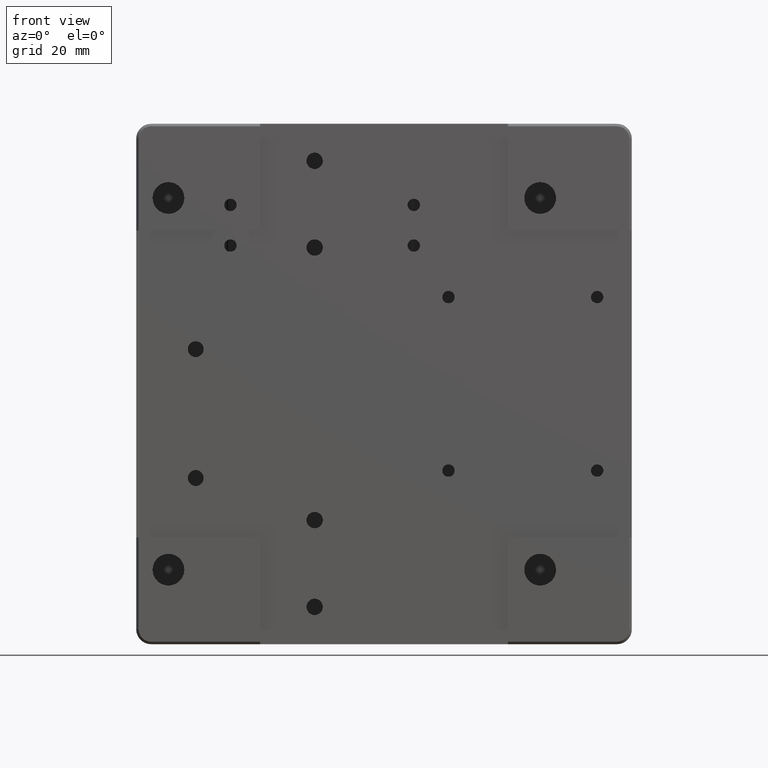
[diagram: clean part render]
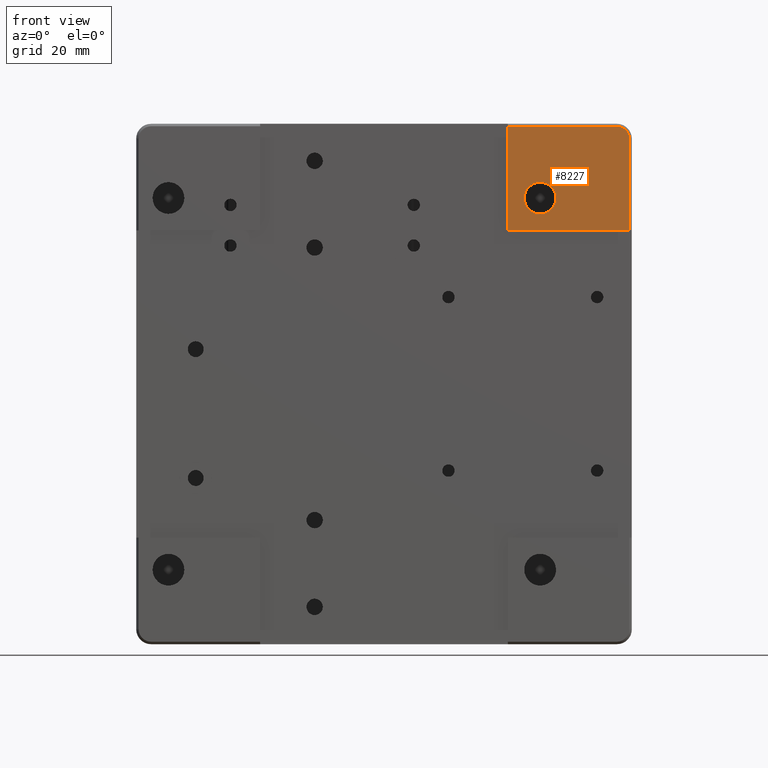
[diagram: same view with one face highlighted and labeled with its STEP entity id]
A machine part, front view. The second image highlights one B-rep face of the part: STEP entity #8227.
In plain terms, the highlighted planar face has unit normal (-0, 1, 0).
Its self-contained STEP definition (entity closure, byte-faithful):
#381 = CARTESIAN_POINT ( 'NONE',  ( 47.00000001114470600, -20.00000394460135000, 51.99998618532249800 ) ) ;
#965 = EDGE_CURVE ( 'NONE', #12018, #30894, #1376, .T. ) ;
#1376 = B_SPLINE_CURVE_WITH_KNOTS ( 'NONE', 3,
 ( #41862, #42744, #20092, #16341, #4433, #34631, #38919, #12568, #35144, #8780 ),
 .UNSPECIFIED., .F., .F.,
 ( 4, 2, 2, 2, 4 ),
 ( 0.5000000000000000000, 0.6250000000000000000, 0.7500000000000000000, 0.8750000000000000000, 1.000000000000000000 ),
 .UNSPECIFIED. ) ;
#1926 = CARTESIAN_POINT ( 'NONE',  ( 34.69999999999999600, -19.99999999999999600, 37.91887902047863400 ) ) ;
#2050 = EDGE_CURVE ( 'NONE', #44713, #32836, #8769, .T. ) ;
#2593 = ORIENTED_EDGE ( 'NONE', *, *, #21382, .F. ) ;
#3451 = CARTESIAN_POINT ( 'NONE',  ( 49.50000000000000000, -20.00000000000000000, 31.00000000000000000 ) ) ;
#3727 = AXIS2_PLACEMENT_3D ( 'NONE', #18386, #48981, #23913 ) ;
#4433 = CARTESIAN_POINT ( 'NONE',  ( 29.53345049608027000, -20.00000000000000000, 40.05893389567417300 ) ) ;
#5419 = EDGE_CURVE ( 'NONE', #21548, #32836, #23745, .T. ) ;
#6349 = PLANE ( 'NONE',  #3727 ) ;
#6463 = CARTESIAN_POINT ( 'NONE',  ( 47.32724597737411200, -20.00001547900345100, 51.99997511548942000 ) ) ;
#6528 = EDGE_LOOP ( 'NONE', ( #25267, #19802, #14951, #8980 ) ) ;
#6895 = CARTESIAN_POINT ( 'NONE',  ( 31.50000000000000000, -19.99999999999999600, 34.29999999999999700 ) ) ;
#7017 = EDGE_CURVE ( 'NONE', #45305, #17215, #43198, .T. ) ;
#8017 = CARTESIAN_POINT ( 'NONE',  ( 31.50000000000000000, -20.00000000000000400, 40.70000000000000300 ) ) ;
#8227 = ADVANCED_FACE ( 'NONE', ( #13160, #24371 ), #6349, .F. ) ;
#8769 = LINE ( 'NONE', #17007, #17580 ) ;
#8780 = CARTESIAN_POINT ( 'NONE',  ( 28.29999999999999700, -20.00000000000000000, 37.50000000000000000 ) ) ;
#8980 = ORIENTED_EDGE ( 'NONE', *, *, #25364, .F. ) ;
#9541 = CARTESIAN_POINT ( 'NONE',  ( 34.29611644273361300, -20.00000000000000000, 39.11158073718689800 ) ) ;
#10695 = CARTESIAN_POINT ( 'NONE',  ( 33.46654950391973000, -20.00000000000000000, 34.94106610432583400 ) ) ;
#10891 = CARTESIAN_POINT ( 'NONE',  ( 28.29999999999999700, -19.99999999999999600, 37.08112097952135900 ) ) ;
#12018 = VERTEX_POINT ( 'NONE', #8017 ) ;
#12568 = CARTESIAN_POINT ( 'NONE',  ( 28.38328743466139400, -20.00000000000000000, 38.33759322994969700 ) ) ;
#13160 = FACE_BOUND ( 'NONE', #6528, .T. ) ;
#13324 = CARTESIAN_POINT ( 'NONE',  ( 33.46654950391972200, -20.00000000000000000, 40.05893389567418000 ) ) ;
#14031 = CARTESIAN_POINT ( 'NONE',  ( 0.0000000000000000000, -20.00000000000000000, 52.00000000000000000 ) ) ;
#14281 = VECTOR ( 'NONE', #32170, 1000.000000000000000 ) ;
#14470 = CARTESIAN_POINT ( 'NONE',  ( 34.29611644273363400, -20.00000000000000000, 35.88841926281313000 ) ) ;
#14674 = CARTESIAN_POINT ( 'NONE',  ( 28.70388355726637300, -20.00000000000000000, 35.88841926281311600 ) ) ;
#14951 = ORIENTED_EDGE ( 'NONE', *, *, #37976, .F. ) ;
#15401 = CARTESIAN_POINT ( 'NONE',  ( 49.43490745483741500, -20.00001547900345900, 50.15436319743022200 ) ) ;
#16341 = CARTESIAN_POINT ( 'NONE',  ( 29.88841926281312000, -20.00000000000000000, 40.29611644273361300 ) ) ;
#16403 = DIRECTION ( 'NONE',  ( -0.0000000000000000000, -0.0000000000000000000, 1.000000000000000000 ) ) ;
#17007 = CARTESIAN_POINT ( 'NONE',  ( 49.50000000000000000, -20.00000000000000000, 0.0000000000000000000 ) ) ;
#17104 = CARTESIAN_POINT ( 'NONE',  ( 32.33759322994969000, -19.99999999999999300, 40.61671256533861700 ) ) ;
#17215 = VERTEX_POINT ( 'NONE', #35416 ) ;
#17580 = VECTOR ( 'NONE', #16403, 1000.000000000000000 ) ;
#17795 = DIRECTION ( 'NONE',  ( 1.000000000000000000, 0.0000000000000000000, 0.0000000000000000000 ) ) ;
#18248 = CARTESIAN_POINT ( 'NONE',  ( 34.70000000000000300, -20.00000000000000000, 37.08112097952135900 ) ) ;
#18386 = CARTESIAN_POINT ( 'NONE',  ( -51.47999999999999700, -20.00000000000000000, 54.08000000000000500 ) ) ;
#18450 = CARTESIAN_POINT ( 'NONE',  ( 29.53345049608027400, -20.00000000000000000, 34.94106610432582000 ) ) ;
#19168 = CARTESIAN_POINT ( 'NONE',  ( 48.99914720667746300, -20.00001547900345500, 51.03635150724292700 ) ) ;
#19802 = ORIENTED_EDGE ( 'NONE', *, *, #965, .F. ) ;
#20011 = B_SPLINE_CURVE_WITH_KNOTS ( 'NONE', 3,
 ( #28319, #1926, #32091, #9541, #35917, #13324, #39705, #17104, #43507, #20853 ),
 .UNSPECIFIED., .F., .F.,
 ( 4, 2, 2, 2, 4 ),
 ( 0.0000000000000000000, 0.1250000000000000000, 0.2500000000000000000, 0.3750000000000000000, 0.5000000000000000000 ),
 .UNSPECIFIED. ) ;
#20092 = CARTESIAN_POINT ( 'NONE',  ( 30.66240677005030000, -20.00000000000000400, 40.61671256533861700 ) ) ;
#20611 = CARTESIAN_POINT ( 'NONE',  ( 49.49998650055700000, -20.00000393678404700, 49.49999999349439900 ) ) ;
#20853 = CARTESIAN_POINT ( 'NONE',  ( 31.50000000000000000, -20.00000000000000400, 40.70000000000000300 ) ) ;
#21382 = EDGE_CURVE ( 'NONE', #45305, #21548, #38618, .T. ) ;
#21548 = VERTEX_POINT ( 'NONE', #37732 ) ;
#22062 = CARTESIAN_POINT ( 'NONE',  ( 28.29999999999999700, -20.00000000000000000, 37.50000000000000000 ) ) ;
#22227 = CARTESIAN_POINT ( 'NONE',  ( 30.66240677005030300, -19.99999999999999600, 34.38328743466139800 ) ) ;
#22624 = ORIENTED_EDGE ( 'NONE', *, *, #32115, .T. ) ;
#22848 = DIRECTION ( 'NONE',  ( 1.000000000000000000, 0.0000000000000000000, 0.0000000000000000000 ) ) ;
#22967 = CARTESIAN_POINT ( 'NONE',  ( 48.25903491861538400, -20.00001547900344800, 51.68444422713901800 ) ) ;
#23745 = B_SPLINE_CURVE_WITH_KNOTS ( 'NONE', 3,
 ( #381, #6463, #38110, #22967, #45591, #19168, #41810, #15401, #41124, #45540 ),
 .UNSPECIFIED., .F., .F.,
 ( 4, 2, 2, 2, 4 ),
 ( 0.0000000000000000000, 0.2500000000000000000, 0.5000000000000000000, 0.7500000000000000000, 1.000000000000000000 ),
 .UNSPECIFIED. ) ;
#23913 = DIRECTION ( 'NONE',  ( 1.000000000000000000, 0.0000000000000000000, 0.0000000000000000000 ) ) ;
#24371 = FACE_OUTER_BOUND ( 'NONE', #45117, .T. ) ;
#24489 = CARTESIAN_POINT ( 'NONE',  ( 34.70000000000000300, -20.00000000000000000, 37.50000000000000000 ) ) ;
#25267 = ORIENTED_EDGE ( 'NONE', *, *, #46043, .F. ) ;
#25364 = EDGE_CURVE ( 'NONE', #43880, #29953, #46073, .T. ) ;
#26063 = CARTESIAN_POINT ( 'NONE',  ( 31.50000000000000000, -19.99999999999999600, 34.29999999999999700 ) ) ;
#26668 = CARTESIAN_POINT ( 'NONE',  ( 37.50000000000000000, -20.00000000000000000, 31.00000000000000000 ) ) ;
#28319 = CARTESIAN_POINT ( 'NONE',  ( 34.70000000000000300, -20.00000000000000000, 37.50000000000000000 ) ) ;
#29953 = VERTEX_POINT ( 'NONE', #24489 ) ;
#30894 = VERTEX_POINT ( 'NONE', #36049 ) ;
#32091 = CARTESIAN_POINT ( 'NONE',  ( 34.61671256533861700, -20.00000000000000400, 38.33759322994971100 ) ) ;
#32115 = EDGE_CURVE ( 'NONE', #17215, #44713, #36064, .T. ) ;
#32170 = DIRECTION ( 'NONE',  ( 0.0000000000000000000, 0.0000000000000000000, -1.000000000000000000 ) ) ;
#32657 = ORIENTED_EDGE ( 'NONE', *, *, #5419, .F. ) ;
#32836 = VERTEX_POINT ( 'NONE', #20611 ) ;
#33267 = CARTESIAN_POINT ( 'NONE',  ( 33.11158073718688400, -20.00000000000000000, 34.70388355726638000 ) ) ;
#34271 = ORIENTED_EDGE ( 'NONE', *, *, #7017, .T. ) ;
#34631 = CARTESIAN_POINT ( 'NONE',  ( 28.94106610432581700, -20.00000000000000000, 39.46654950391973000 ) ) ;
#34898 = VECTOR ( 'NONE', #22848, 1000.000000000000000 ) ;
#35144 = CARTESIAN_POINT ( 'NONE',  ( 28.30000000000000100, -20.00000000000000000, 37.91887902047864100 ) ) ;
#35416 = CARTESIAN_POINT ( 'NONE',  ( 25.00000000000000000, -20.00000000000000000, 31.00000000000000000 ) ) ;
#35917 = CARTESIAN_POINT ( 'NONE',  ( 34.05893389567418000, -20.00000000000000000, 39.46654950391973700 ) ) ;
#36049 = CARTESIAN_POINT ( 'NONE',  ( 28.29999999999999700, -20.00000000000000000, 37.50000000000000000 ) ) ;
#36064 = LINE ( 'NONE', #26668, #34898 ) ;
#36266 = VECTOR ( 'NONE', #17795, 1000.000000000000000 ) ;
#36634 = CARTESIAN_POINT ( 'NONE',  ( 25.00000000000000000, -20.00000000000000000, 41.75000000000000000 ) ) ;
#37032 = CARTESIAN_POINT ( 'NONE',  ( 34.05893389567418700, -20.00000000000000000, 35.53345049608027800 ) ) ;
#37234 = CARTESIAN_POINT ( 'NONE',  ( 28.38328743466139100, -20.00000000000000400, 36.66240677005030300 ) ) ;
#37732 = CARTESIAN_POINT ( 'NONE',  ( 47.00000001114470600, -20.00000394460135000, 51.99998618532249800 ) ) ;
#37976 = EDGE_CURVE ( 'NONE', #29953, #12018, #20011, .T. ) ;
#38110 = CARTESIAN_POINT ( 'NONE',  ( 47.65436319743020700, -20.00001547900345100, 51.93490745483743600 ) ) ;
#38618 = LINE ( 'NONE', #14031, #36266 ) ;
#38919 = CARTESIAN_POINT ( 'NONE',  ( 28.70388355726637300, -20.00000000000000000, 39.11158073718687700 ) ) ;
#39705 = CARTESIAN_POINT ( 'NONE',  ( 33.11158073718687700, -20.00000000000000000, 40.29611644273362700 ) ) ;
#40712 = CARTESIAN_POINT ( 'NONE',  ( 31.91887902047864500, -19.99999999999999600, 34.29999999999999700 ) ) ;
#40877 = CARTESIAN_POINT ( 'NONE',  ( 34.61671256533860900, -20.00000000000000000, 36.66240677005031000 ) ) ;
#41090 = CARTESIAN_POINT ( 'NONE',  ( 28.94106610432582400, -20.00000000000000000, 35.53345049608027800 ) ) ;
#41124 = CARTESIAN_POINT ( 'NONE',  ( 49.49997511548942700, -20.00001547900345100, 49.82724597737414000 ) ) ;
#41186 = CARTESIAN_POINT ( 'NONE',  ( 25.00000000000000000, -20.00000000144834900, 51.99999999855170800 ) ) ;
#41565 = B_SPLINE_CURVE_WITH_KNOTS ( 'NONE', 3,
 ( #22062, #10891, #37234, #14674, #41090, #18450, #44871, #22227, #48662, #26063 ),
 .UNSPECIFIED., .F., .F.,
 ( 4, 2, 2, 2, 4 ),
 ( 0.0000000000000000000, 0.1250000000000000000, 0.2500000000000000000, 0.3750000000000000000, 0.5000000000000000000 ),
 .UNSPECIFIED. ) ;
#41810 = CARTESIAN_POINT ( 'NONE',  ( 49.18444422713903200, -20.00001547900345100, 50.75903491861540600 ) ) ;
#41862 = CARTESIAN_POINT ( 'NONE',  ( 31.50000000000000000, -20.00000000000000400, 40.70000000000000300 ) ) ;
#42744 = CARTESIAN_POINT ( 'NONE',  ( 31.08112097952134800, -20.00000000000000400, 40.70000000000001000 ) ) ;
#43198 = LINE ( 'NONE', #36634, #14281 ) ;
#43507 = CARTESIAN_POINT ( 'NONE',  ( 31.91887902047863800, -20.00000000000000400, 40.70000000000001000 ) ) ;
#43880 = VERTEX_POINT ( 'NONE', #47629 ) ;
#44032 = ORIENTED_EDGE ( 'NONE', *, *, #2050, .T. ) ;
#44653 = CARTESIAN_POINT ( 'NONE',  ( 34.70000000000000300, -20.00000000000000000, 37.50000000000000000 ) ) ;
#44713 = VERTEX_POINT ( 'NONE', #3451 ) ;
#44871 = CARTESIAN_POINT ( 'NONE',  ( 29.88841926281312300, -20.00000000000000000, 34.70388355726638000 ) ) ;
#45117 = EDGE_LOOP ( 'NONE', ( #32657, #2593, #34271, #22624, #44032 ) ) ;
#45305 = VERTEX_POINT ( 'NONE', #41186 ) ;
#45540 = CARTESIAN_POINT ( 'NONE',  ( 49.49998650055700000, -20.00000393678404700, 49.49999999349439900 ) ) ;
#45591 = CARTESIAN_POINT ( 'NONE',  ( 48.53635150724294100, -20.00001547900345100, 51.49914720667746300 ) ) ;
#46043 = EDGE_CURVE ( 'NONE', #30894, #43880, #41565, .T. ) ;
#46073 = B_SPLINE_CURVE_WITH_KNOTS ( 'NONE', 3,
 ( #6895, #40712, #48279, #33267, #10695, #37032, #14470, #40877, #18248, #44653 ),
 .UNSPECIFIED., .F., .F.,
 ( 4, 2, 2, 2, 4 ),
 ( 0.5000000000000000000, 0.6250000000000000000, 0.7500000000000000000, 0.8750000000000000000, 1.000000000000000000 ),
 .UNSPECIFIED. ) ;
#47629 = CARTESIAN_POINT ( 'NONE',  ( 31.50000000000000000, -19.99999999999999600, 34.29999999999999700 ) ) ;
#48279 = CARTESIAN_POINT ( 'NONE',  ( 32.33759322994970400, -19.99999999999999600, 34.38328743466139100 ) ) ;
#48662 = CARTESIAN_POINT ( 'NONE',  ( 31.08112097952135900, -20.00000000000000000, 34.29999999999999700 ) ) ;
#48981 = DIRECTION ( 'NONE',  ( -0.0000000000000000000, 1.000000000000000000, 0.0000000000000000000 ) ) ;